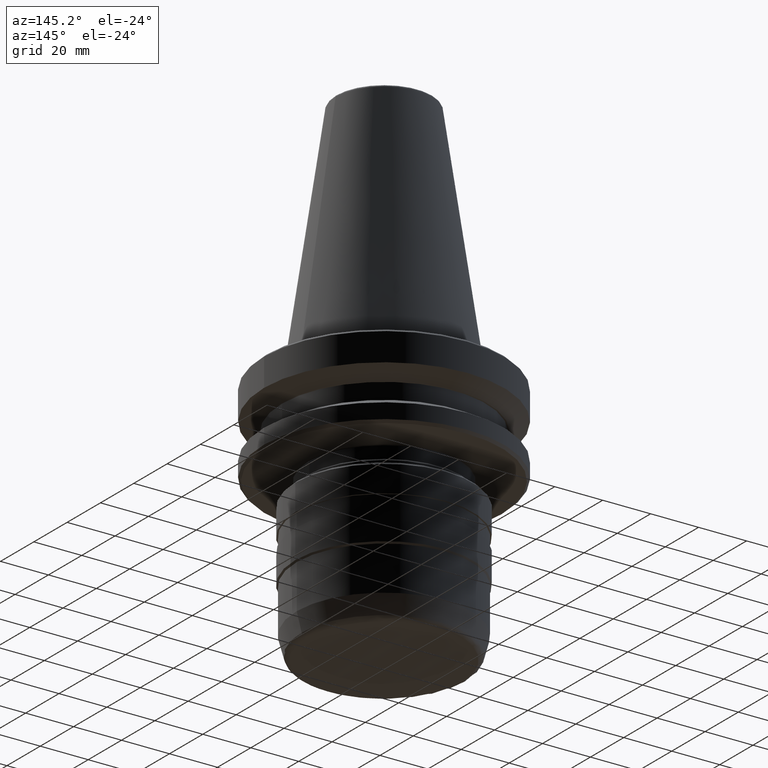
[diagram: clean part render]
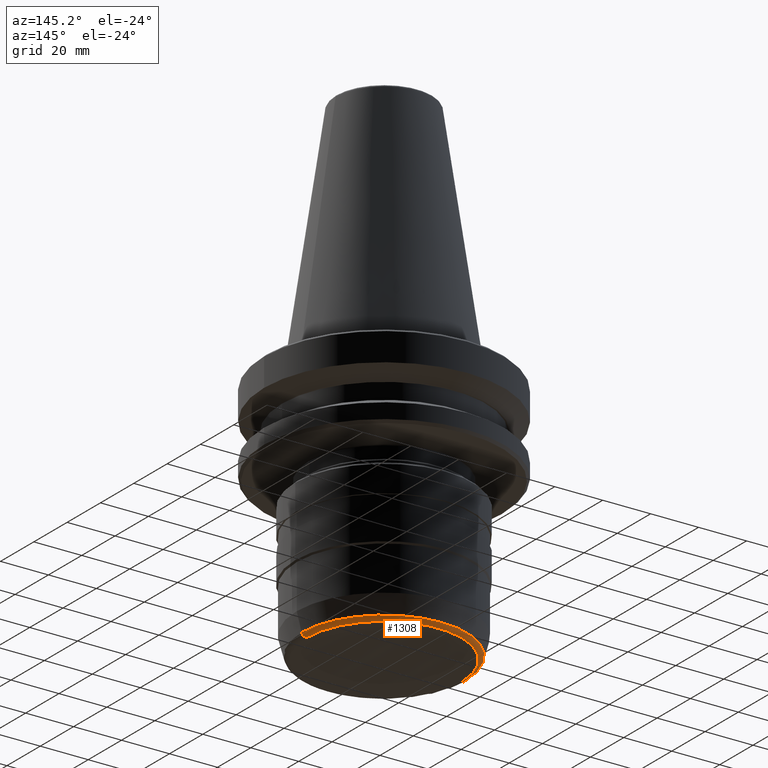
[diagram: same view with one face highlighted and labeled with its STEP entity id]
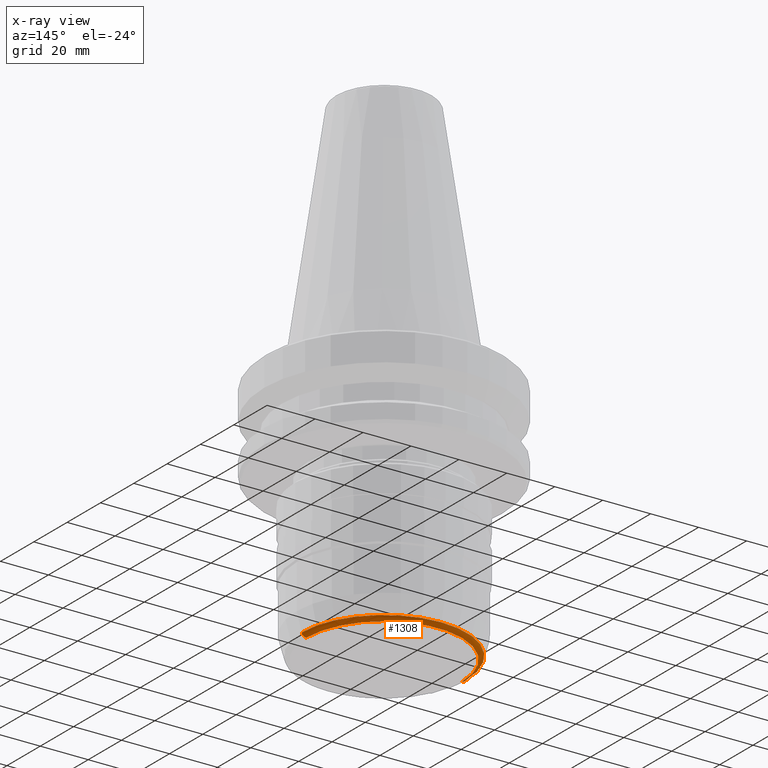
[diagram: x-ray of the same camera — body ghosted, the highlighted face saturated]
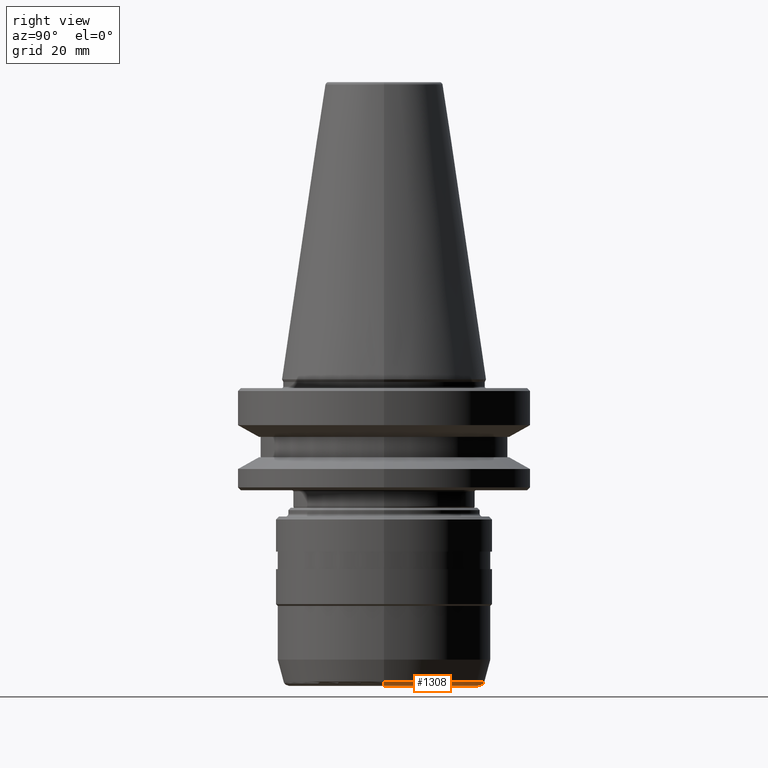
[diagram: same view with one face highlighted and labeled with its STEP entity id]
A machine part, auxiliary view. The second image highlights one B-rep face of the part: STEP entity #1308.
The next image is the same camera in x-ray: the body ghosted, the highlighted face saturated — about 0% of this face is hidden behind the body in this view.
A second angle (right view) of the same face is appended — the face is thin or edge-on in the first view.
In plain terms, the highlighted toroidal blend (fillet) surface has major radius 32.4538 mm and minor (blend) radius 2 mm.
Its self-contained STEP definition (entity closure, byte-faithful):
#16 = DIRECTION ( 'NONE',  ( 0.0000000000000000000, -1.000000000000000000, 0.0000000000000000000 ) ) ;
#61 = CARTESIAN_POINT ( 'NONE',  ( 0.0000000000000000000, 0.0000000000000000000, -103.0000000000010900 ) ) ;
#96 = CARTESIAN_POINT ( 'NONE',  ( -32.45380329216218500, 4.092736429328299300E-015, -105.0000000000013100 ) ) ;
#137 = AXIS2_PLACEMENT_3D ( 'NONE', #1033, #259, #1160 ) ;
#154 = ORIENTED_EDGE ( 'NONE', *, *, #455, .T. ) ;
#201 = VERTEX_POINT ( 'NONE', #96 ) ;
#233 = DIRECTION ( 'NONE',  ( 1.000000000000000000, 0.0000000000000000000, 0.0000000000000000000 ) ) ;
#259 = DIRECTION ( 'NONE',  ( 1.224646799147353200E-016, 1.000000000000000000, 0.0000000000000000000 ) ) ;
#309 = CARTESIAN_POINT ( 'NONE',  ( 0.0000000000000000000, 0.0000000000000000000, -105.0000000000013100 ) ) ;
#324 = EDGE_LOOP ( 'NONE', ( #154, #1044, #565, #715 ) ) ;
#330 = DIRECTION ( 'NONE',  ( 1.000000000000000000, 0.0000000000000000000, 0.0000000000000000000 ) ) ;
#352 = VERTEX_POINT ( 'NONE', #866 ) ;
#402 = TOROIDAL_SURFACE ( 'NONE', #993, 32.45380329216218500, 2.000000000000109200 ) ;
#435 = DIRECTION ( 'NONE',  ( 0.0000000000000000000, 0.0000000000000000000, -1.000000000000000000 ) ) ;
#436 = FACE_OUTER_BOUND ( 'NONE', #324, .T. ) ;
#455 = EDGE_CURVE ( 'NONE', #352, #201, #1413, .T. ) ;
#494 = EDGE_CURVE ( 'NONE', #608, #1466, #1118, .T. ) ;
#565 = ORIENTED_EDGE ( 'NONE', *, *, #494, .F. ) ;
#590 = CARTESIAN_POINT ( 'NONE',  ( 0.0000000000000000000, 0.0000000000000000000, -103.5176380902060900 ) ) ;
#608 = VERTEX_POINT ( 'NONE', #1067 ) ;
#643 = DIRECTION ( 'NONE',  ( -0.0000000000000000000, -0.0000000000000000000, 1.000000000000000000 ) ) ;
#668 = AXIS2_PLACEMENT_3D ( 'NONE', #590, #643, #857 ) ;
#712 = DIRECTION ( 'NONE',  ( -0.0000000000000000000, -0.0000000000000000000, 1.000000000000000000 ) ) ;
#715 = ORIENTED_EDGE ( 'NONE', *, *, #761, .F. ) ;
#761 = EDGE_CURVE ( 'NONE', #352, #608, #1070, .T. ) ;
#857 = DIRECTION ( 'NONE',  ( 1.000000000000000000, 0.0000000000000000000, 0.0000000000000000000 ) ) ;
#866 = CARTESIAN_POINT ( 'NONE',  ( 32.45380329216218500, 0.0000000000000000000, -105.0000000000013100 ) ) ;
#983 = DIRECTION ( 'NONE',  ( -0.0000000000000000000, -0.0000000000000000000, 1.000000000000000000 ) ) ;
#993 = AXIS2_PLACEMENT_3D ( 'NONE', #61, #712, #330 ) ;
#1018 = AXIS2_PLACEMENT_3D ( 'NONE', #1264, #16, #435 ) ;
#1033 = CARTESIAN_POINT ( 'NONE',  ( -32.45380329216218500, 3.974444632190426000E-015, -103.0000000000010900 ) ) ;
#1044 = ORIENTED_EDGE ( 'NONE', *, *, #1549, .T. ) ;
#1067 = CARTESIAN_POINT ( 'NONE',  ( 34.38565494474038800, 0.0000000000000000000, -103.5176380902060900 ) ) ;
#1070 = CIRCLE ( 'NONE', #1018, 2.000000000000112800 ) ;
#1080 = CIRCLE ( 'NONE', #137, 2.000000000000112800 ) ;
#1118 = CIRCLE ( 'NONE', #668, 34.38565494474033100 ) ;
#1160 = DIRECTION ( 'NONE',  ( -1.000000000000000000, 1.224646799147350700E-016, 0.0000000000000000000 ) ) ;
#1264 = CARTESIAN_POINT ( 'NONE',  ( 32.45380329216218500, 0.0000000000000000000, -103.0000000000010900 ) ) ;
#1308 = ADVANCED_FACE ( 'NONE', ( #436 ), #402, .T. ) ;
#1362 = AXIS2_PLACEMENT_3D ( 'NONE', #309, #983, #233 ) ;
#1413 = CIRCLE ( 'NONE', #1362, 32.45380329216218500 ) ;
#1466 = VERTEX_POINT ( 'NONE', #1512 ) ;
#1512 = CARTESIAN_POINT ( 'NONE',  ( -34.38565494474038800, 4.211028226466167800E-015, -103.5176380902060900 ) ) ;
#1549 = EDGE_CURVE ( 'NONE', #201, #1466, #1080, .T. ) ;